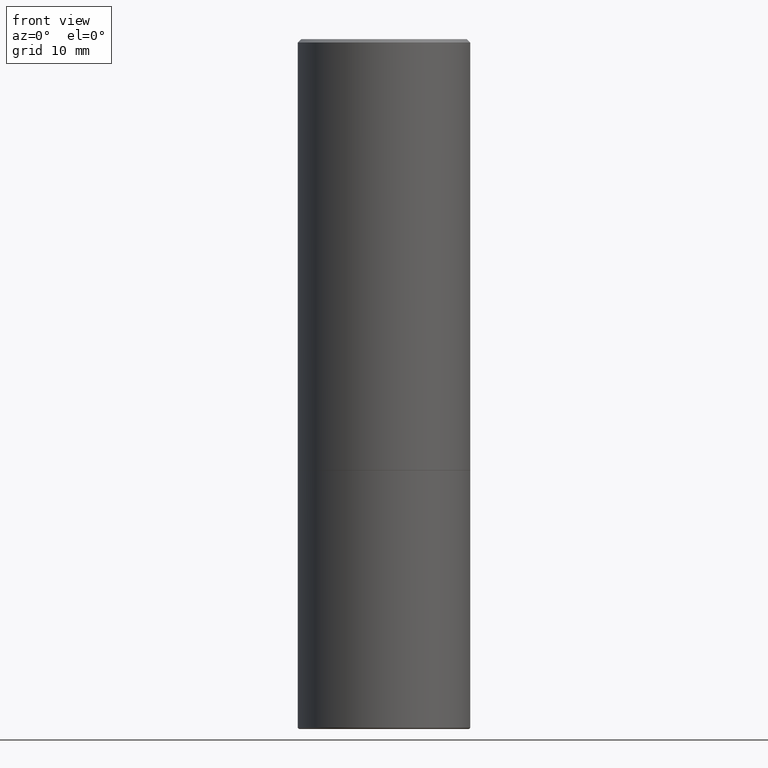
[diagram: clean part render]
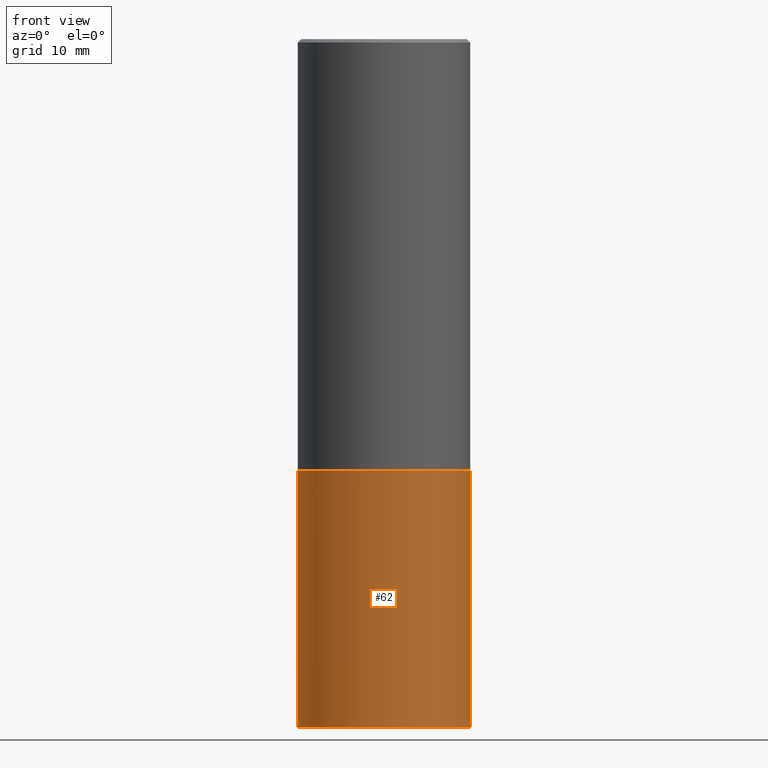
[diagram: same view with one face highlighted and labeled with its STEP entity id]
A machine part, front view. The second image highlights one B-rep face of the part: STEP entity #62.
In plain terms, the highlighted cylindrical surface (partial cylindrical patch) has radius 12.7 mm, axis along (-0, 0, 1).
Its self-contained STEP definition (entity closure, byte-faithful):
#2 = ORIENTED_EDGE ( 'NONE', *, *, #326, .F. ) ;
#10 = VERTEX_POINT ( 'NONE', #80 ) ;
#14 = AXIS2_PLACEMENT_3D ( 'NONE', #216, #234, #251 ) ;
#37 = EDGE_LOOP ( 'NONE', ( #2, #128, #254, #68 ) ) ;
#42 = EDGE_CURVE ( 'NONE', #319, #286, #387, .T. ) ;
#47 = CARTESIAN_POINT ( 'NONE',  ( 0.000000000000000000, 0.000000000000000000, 0.000000000000000000 ) ) ;
#55 = DIRECTION ( 'NONE',  ( -2.445468806185136597E-29, 3.491481338843145583E-15, 1.000000000000000000 ) ) ;
#62 = ADVANCED_FACE ( 'NONE', ( #106 ), #228, .T. ) ;
#68 = ORIENTED_EDGE ( 'NONE', *, *, #42, .F. ) ;
#70 = DIRECTION ( 'NONE',  ( 1.000000000000000000, -6.982962677686266711E-15, 4.876176775795935793E-29 ) ) ;
#77 = CARTESIAN_POINT ( 'NONE',  ( -0.5000000000000000000, 3.552713678800500929E-15, -2.459467545127452891E-29 ) ) ;
#80 = CARTESIAN_POINT ( 'NONE',  ( 0.5000000000000000000, -1.742249188082728404E-14, -3.989999999999999769 ) ) ;
#106 = FACE_OUTER_BOUND ( 'NONE', #37, .T. ) ;
#109 = CARTESIAN_POINT ( 'NONE',  ( -0.5000000000000000000, -7.777143265745505305E-15, -2.500000000000000000 ) ) ;
#114 = CARTESIAN_POINT ( 'NONE',  ( 0.5000000000000000000, -1.222018468595099830E-14, -2.500000000000000000 ) ) ;
#128 = ORIENTED_EDGE ( 'NONE', *, *, #353, .T. ) ;
#132 = DIRECTION ( 'NONE',  ( -2.445468806185136597E-29, 3.491481338843145583E-15, 1.000000000000000000 ) ) ;
#146 = DIRECTION ( 'NONE',  ( 1.000000000000000000, -6.982962677686269077E-15, 0.000000000000000000 ) ) ;
#150 = DIRECTION ( 'NONE',  ( -2.445468806185136877E-29, 3.491481338843145188E-15, 1.000000000000000000 ) ) ;
#181 = CARTESIAN_POINT ( 'NONE',  ( -0.5000000000000000000, -1.037829686318364817E-14, -3.989999999999999769 ) ) ;
#216 = CARTESIAN_POINT ( 'NONE',  ( 9.757420536678694842E-29, -1.393101054198414910E-14, -3.989999999999999769 ) ) ;
#223 = CIRCLE ( 'NONE', #14, 0.5000000000000000000 ) ;
#228 = CYLINDRICAL_SURFACE ( 'NONE', #289, 0.5000000000000000000 ) ;
#234 = DIRECTION ( 'NONE',  ( -2.445468806185136597E-29, 3.491481338843145583E-15, 1.000000000000000000 ) ) ;
#238 = EDGE_CURVE ( 'NONE', #10, #286, #266, .T. ) ;
#241 = LINE ( 'NONE', #77, #293 ) ;
#251 = DIRECTION ( 'NONE',  ( 1.000000000000000000, -6.982962677686266711E-15, 0.000000000000000000 ) ) ;
#254 = ORIENTED_EDGE ( 'NONE', *, *, #238, .T. ) ;
#266 = LINE ( 'NONE', #329, #351 ) ;
#286 = VERTEX_POINT ( 'NONE', #114 ) ;
#289 = AXIS2_PLACEMENT_3D ( 'NONE', #47, #132, #70 ) ;
#293 = VECTOR ( 'NONE', #363, 39.37007874015748143 ) ;
#319 = VERTEX_POINT ( 'NONE', #109 ) ;
#326 = EDGE_CURVE ( 'NONE', #355, #319, #241, .T. ) ;
#329 = CARTESIAN_POINT ( 'NONE',  ( 0.5000000000000000000, -3.491481338843133355E-15, 2.438088387897967896E-29 ) ) ;
#331 = AXIS2_PLACEMENT_3D ( 'NONE', #404, #55, #146 ) ;
#351 = VECTOR ( 'NONE', #150, 39.37007874015748143 ) ;
#353 = EDGE_CURVE ( 'NONE', #355, #10, #223, .T. ) ;
#355 = VERTEX_POINT ( 'NONE', #181 ) ;
#363 = DIRECTION ( 'NONE',  ( -2.445468806185136877E-29, 3.491481338843145188E-15, 1.000000000000000000 ) ) ;
#387 = CIRCLE ( 'NONE', #331, 0.5000000000000000000 ) ;
#404 = CARTESIAN_POINT ( 'NONE',  ( 6.113672015462842613E-29, -8.728703347107864943E-15, -2.500000000000000000 ) ) ;